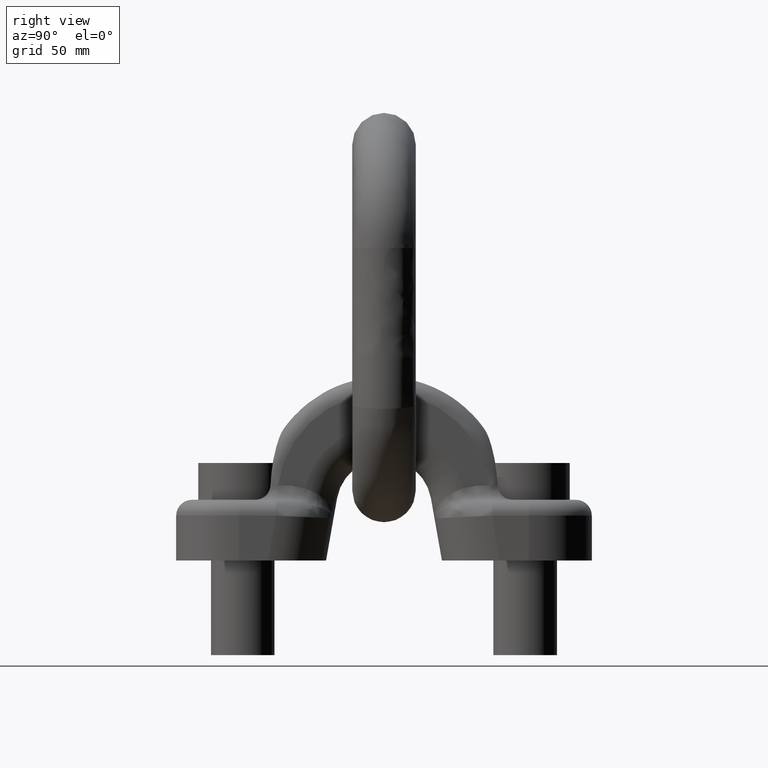
[diagram: clean part render]
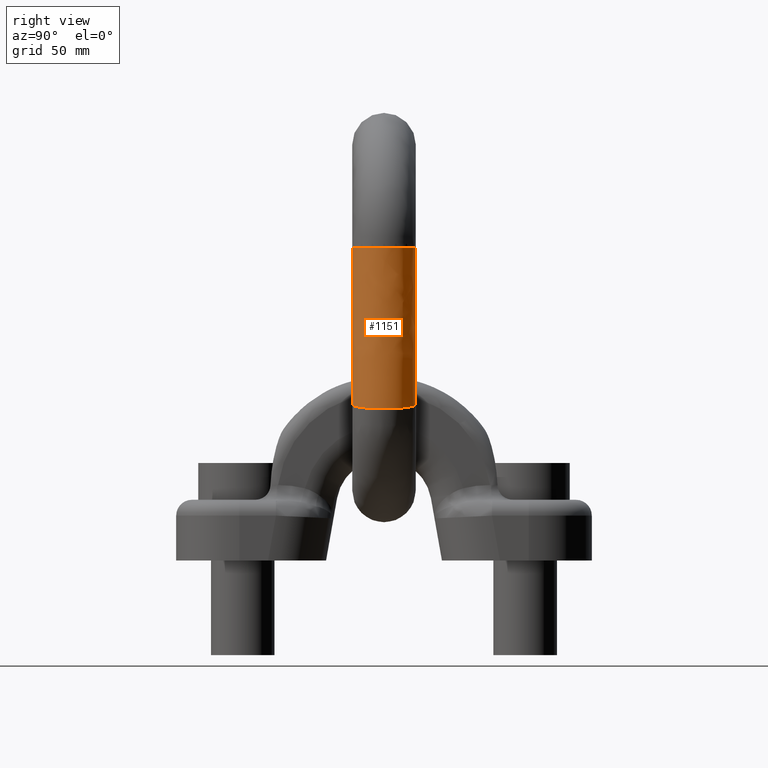
[diagram: same view with one face highlighted and labeled with its STEP entity id]
A machine part, right view. The second image highlights one B-rep face of the part: STEP entity #1151.
In plain terms, the highlighted face is a freeform B-spline surface patch.
Its self-contained STEP definition (entity closure, byte-faithful):
#31=(
BOUNDED_CURVE()
B_SPLINE_CURVE(4,(#7114,#7115,#7116,#7117,#7118,#7119,#7120,#7121,#7122,
#7123,#7124,#7125,#7126,#7127),.UNSPECIFIED.,.T.,.F.)
B_SPLINE_CURVE_WITH_KNOTS((2,3,3,3,3,3,2),(-0.25,0.,0.25,0.5,0.75,1.,1.25),
 .UNSPECIFIED.)
CURVE()
GEOMETRIC_REPRESENTATION_ITEM()
RATIONAL_B_SPLINE_CURVE((1.0166117137858,1.0166117137858,0.958470715535492,
1.0166117137858,1.0166117137858,0.958470715535492,1.0166117137858,1.0166117137858,
0.958470715535492,1.0166117137858,1.0166117137858,0.958470715535492,1.0166117137858,
1.0166117137858))
REPRESENTATION_ITEM('')
);
#32=(
BOUNDED_CURVE()
B_SPLINE_CURVE(4,(#7129,#7130,#7131,#7132,#7133,#7134,#7135,#7136,#7137,
#7138,#7139,#7140,#7141,#7142),.UNSPECIFIED.,.T.,.F.)
B_SPLINE_CURVE_WITH_KNOTS((2,3,3,3,3,3,2),(-0.25,0.,0.25,0.5,0.75,1.,1.25),
 .UNSPECIFIED.)
CURVE()
GEOMETRIC_REPRESENTATION_ITEM()
RATIONAL_B_SPLINE_CURVE((1.0166117137858,1.0166117137858,0.958470715535492,
1.0166117137858,1.0166117137858,0.958470715535492,1.0166117137858,1.0166117137858,
0.958470715535492,1.0166117137858,1.0166117137858,0.958470715535492,1.0166117137858,
1.0166117137858))
REPRESENTATION_ITEM('')
);
#827=(
BOUNDED_SURFACE()
B_SPLINE_SURFACE(4,3,((#7144,#7145,#7146,#7147,#7148,#7149,#7150,#7151,
#7152,#7153),(#7154,#7155,#7156,#7157,#7158,#7159,#7160,#7161,#7162,#7163),
(#7164,#7165,#7166,#7167,#7168,#7169,#7170,#7171,#7172,#7173),(#7174,#7175,
#7176,#7177,#7178,#7179,#7180,#7181,#7182,#7183),(#7184,#7185,#7186,#7187,
#7188,#7189,#7190,#7191,#7192,#7193),(#7194,#7195,#7196,#7197,#7198,#7199,
#7200,#7201,#7202,#7203),(#7204,#7205,#7206,#7207,#7208,#7209,#7210,#7211,
#7212,#7213),(#7214,#7215,#7216,#7217,#7218,#7219,#7220,#7221,#7222,#7223),
(#7224,#7225,#7226,#7227,#7228,#7229,#7230,#7231,#7232,#7233),(#7234,#7235,
#7236,#7237,#7238,#7239,#7240,#7241,#7242,#7243),(#7244,#7245,#7246,#7247,
#7248,#7249,#7250,#7251,#7252,#7253),(#7254,#7255,#7256,#7257,#7258,#7259,
#7260,#7261,#7262,#7263),(#7264,#7265,#7266,#7267,#7268,#7269,#7270,#7271,
#7272,#7273),(#7274,#7275,#7276,#7277,#7278,#7279,#7280,#7281,#7282,#7283)),
 .UNSPECIFIED.,.T.,.F.,.F.)
B_SPLINE_SURFACE_WITH_KNOTS((2,3,3,3,3,3,2),(4,1,1,1,1,1,1,4),(-0.25,0.,
0.25,0.5,0.75,1.,1.25),(0.,0.0432087135786119,0.0921088676254971,0.141290802977337,
0.189262808703866,0.373676181936575,0.994886599698742,1.),.UNSPECIFIED.)
GEOMETRIC_REPRESENTATION_ITEM()
RATIONAL_B_SPLINE_SURFACE(((1.0166117137858,1.0166117137858,1.0166117137858,
1.0166117137858,1.0166117137858,1.0166117137858,1.0166117137858,1.0166117137858,
1.0166117137858,1.0166117137858),(1.0166117137858,1.0166117137858,1.0166117137858,
1.0166117137858,1.0166117137858,1.0166117137858,1.0166117137858,1.0166117137858,
1.0166117137858,1.0166117137858),(0.958470715535492,0.958470715535492,0.958470715535491,
0.958470715535493,0.958470715535492,0.958470715535493,0.95847071553549,
0.958470715535493,0.958470715535492,0.958470715535492),(1.0166117137858,
1.0166117137858,1.0166117137858,1.0166117137858,1.0166117137858,1.0166117137858,
1.0166117137858,1.0166117137858,1.0166117137858,1.0166117137858),(1.0166117137858,
1.0166117137858,1.0166117137858,1.0166117137858,1.0166117137858,1.0166117137858,
1.0166117137858,1.0166117137858,1.0166117137858,1.0166117137858),(0.958470715535492,
0.958470715535492,0.958470715535491,0.958470715535493,0.958470715535492,
0.958470715535493,0.95847071553549,0.958470715535493,0.958470715535492,
0.958470715535492),(1.0166117137858,1.0166117137858,1.0166117137858,1.0166117137858,
1.0166117137858,1.0166117137858,1.0166117137858,1.0166117137858,1.0166117137858,
1.0166117137858),(1.0166117137858,1.0166117137858,1.0166117137858,1.0166117137858,
1.0166117137858,1.0166117137858,1.0166117137858,1.0166117137858,1.0166117137858,
1.0166117137858),(0.958470715535492,0.958470715535492,0.958470715535491,
0.958470715535493,0.958470715535492,0.958470715535493,0.95847071553549,
0.958470715535493,0.958470715535492,0.958470715535492),(1.0166117137858,
1.0166117137858,1.0166117137858,1.0166117137858,1.0166117137858,1.0166117137858,
1.0166117137858,1.0166117137858,1.0166117137858,1.0166117137858),(1.0166117137858,
1.0166117137858,1.0166117137858,1.0166117137858,1.0166117137858,1.0166117137858,
1.0166117137858,1.0166117137858,1.0166117137858,1.0166117137858),(0.958470715535492,
0.958470715535492,0.958470715535491,0.958470715535493,0.958470715535492,
0.958470715535493,0.95847071553549,0.958470715535493,0.958470715535492,
0.958470715535492),(1.0166117137858,1.0166117137858,1.0166117137858,1.0166117137858,
1.0166117137858,1.0166117137858,1.0166117137858,1.0166117137858,1.0166117137858,
1.0166117137858),(1.0166117137858,1.0166117137858,1.0166117137858,1.0166117137858,
1.0166117137858,1.0166117137858,1.0166117137858,1.0166117137858,1.0166117137858,
1.0166117137858)))
REPRESENTATION_ITEM('')
SURFACE()
);
#1151=ADVANCED_FACE('',(#1502,#1503),#827,.F.);
#1502=FACE_BOUND('',#1699,.T.);
#1503=FACE_BOUND('',#1700,.T.);
#1699=EDGE_LOOP('',(#2865));
#1700=EDGE_LOOP('',(#2866));
#2865=ORIENTED_EDGE('',*,*,#3570,.T.);
#2866=ORIENTED_EDGE('',*,*,#3571,.F.);
#3150=VERTEX_POINT('',#7128);
#3151=VERTEX_POINT('',#7143);
#3570=EDGE_CURVE('',#3150,#3150,#31,.T.);
#3571=EDGE_CURVE('',#3151,#3151,#32,.T.);
#7114=CARTESIAN_POINT('',(77.3007613865596,22.5,109.379454022416));
#7115=CARTESIAN_POINT('',(61.5243730694713,22.5,111.463071945445));
#7116=CARTESIAN_POINT('',(51.0454819839968,18.5225243558257,112.847039228724));
#7117=CARTESIAN_POINT('',(47.1013849047248,7.95495128834867,113.367943709481));
#7118=CARTESIAN_POINT('',(47.1013849047248,-7.95495128834865,113.367943709481));
#7119=CARTESIAN_POINT('',(51.0454819839968,-18.5225243558257,112.847039228724));
#7120=CARTESIAN_POINT('',(61.5243730694712,-22.5,111.463071945445));
#7121=CARTESIAN_POINT('',(77.3007613865595,-22.5,109.379454022416));
#7122=CARTESIAN_POINT('',(87.779652472034,-18.5225243558257,107.995486739137));
#7123=CARTESIAN_POINT('',(91.7237495513061,-7.95495128834867,107.474582258379));
#7124=CARTESIAN_POINT('',(91.7237495513061,7.95495128834865,107.474582258379));
#7125=CARTESIAN_POINT('',(87.779652472034,18.5225243558256,107.995486739137));
#7126=CARTESIAN_POINT('',(77.3007613865596,22.5,109.379454022416));
#7127=CARTESIAN_POINT('',(61.5243730694713,22.5,111.463071945445));
#7128=CARTESIAN_POINT('',(69.4125672280154,22.5,110.42126298393));
#7129=CARTESIAN_POINT('',(77.9548750239718,22.5,221.279225035843));
#7130=CARTESIAN_POINT('',(62.0449880121461,22.5,221.278385300655));
#7131=CARTESIAN_POINT('',(51.4774252830678,18.5225243558257,221.277827537155));
#7132=CARTESIAN_POINT('',(47.4999535301114,7.95495128834866,221.277617603358));
#7133=CARTESIAN_POINT('',(47.4999535301114,-7.95495128834867,221.277617603358));
#7134=CARTESIAN_POINT('',(51.4774252830679,-18.5225243558257,221.277827537155));
#7135=CARTESIAN_POINT('',(62.0449880121461,-22.5,221.278385300655));
#7136=CARTESIAN_POINT('',(77.9548750239718,-22.5,221.279225035843));
#7137=CARTESIAN_POINT('',(88.52243775305,-18.5225243558257,221.279782799343));
#7138=CARTESIAN_POINT('',(92.4999095060064,-7.95495128834866,221.27999273314));
#7139=CARTESIAN_POINT('',(92.4999095060064,7.95495128834866,221.27999273314));
#7140=CARTESIAN_POINT('',(88.52243775305,18.5225243558257,221.279782799343));
#7141=CARTESIAN_POINT('',(77.9548750239718,22.5,221.279225035843));
#7142=CARTESIAN_POINT('',(62.0449880121461,22.5,221.278385300655));
#7143=CARTESIAN_POINT('',(69.9999315180589,22.5,221.278805168249));
#7144=CARTESIAN_POINT('',(61.5243730694713,22.5,111.463071945445));
#7145=CARTESIAN_POINT('',(61.6841675240441,22.5,112.689595749437));
#7146=CARTESIAN_POINT('',(61.9490660167534,22.5,115.33886785264));
#7147=CARTESIAN_POINT('',(62.0719379187288,22.5,119.329266250323));
#7148=CARTESIAN_POINT('',(62.0403747593272,22.5,124.539408769396));
#7149=CARTESIAN_POINT('',(62.0468340514941,22.4999999999999,134.445102627707));
#7150=CARTESIAN_POINT('',(62.0433444384774,22.5000000000001,165.975830546508));
#7151=CARTESIAN_POINT('',(62.0456695433861,22.4999999999999,198.17382256403));
#7152=CARTESIAN_POINT('',(62.0449923462162,22.5,221.091411880696));
#7153=CARTESIAN_POINT('',(62.0449880121461,22.5,221.278385300655));
#7154=CARTESIAN_POINT('',(77.3007613865596,22.5,109.379454022416));
#7155=CARTESIAN_POINT('',(77.5015311366207,22.5,110.907548343909));
#7156=CARTESIAN_POINT('',(77.8343562294252,22.5,114.217875140239));
#7157=CARTESIAN_POINT('',(77.9887355607674,22.5,119.631356401599));
#7158=CARTESIAN_POINT('',(77.9490788177274,22.5,124.489054213263));
#7159=CARTESIAN_POINT('',(77.9571944339886,22.5,134.463268032859));
#7160=CARTESIAN_POINT('',(77.9528099968991,22.5,165.960124612621));
#7161=CARTESIAN_POINT('',(77.955731316871,22.4999999999999,198.177667293768));
#7162=CARTESIAN_POINT('',(77.9548804694059,22.5,221.092307189764));
#7163=CARTESIAN_POINT('',(77.9548750239718,22.5,221.279225035843));
#7164=CARTESIAN_POINT('',(87.779652472034,18.5225243558256,107.995486739137));
#7165=CARTESIAN_POINT('',(88.0076385690808,18.5225243558257,109.723888288366));
#7166=CARTESIAN_POINT('',(88.3855814309143,18.5225243558257,113.473296577341));
#7167=CARTESIAN_POINT('',(88.5608884241576,18.5225243558256,119.832008777135));
#7168=CARTESIAN_POINT('',(88.5158558130967,18.5225243558257,124.455608034152));
#7169=CARTESIAN_POINT('',(88.5250715822848,18.5225243558257,134.475333741326));
#7170=CARTESIAN_POINT('',(88.5200927909109,18.5225243558257,165.949692518324));
#7171=CARTESIAN_POINT('',(88.5234101250133,18.5225243558257,198.180221015403));
#7172=CARTESIAN_POINT('',(88.5224439366672,18.5225243558257,221.092901866189));
#7173=CARTESIAN_POINT('',(88.52243775305,18.5225243558257,221.279782799343));
#7174=CARTESIAN_POINT('',(91.7237495513061,7.95495128834865,107.474582258379));
#7175=CARTESIAN_POINT('',(91.9619794722249,7.95495128834865,109.278376436984));
#7176=CARTESIAN_POINT('',(92.3569039840823,7.95495128834864,113.19304839924));
#7177=CARTESIAN_POINT('',(92.5400878346671,7.95495128834864,119.907531314954));
#7178=CARTESIAN_POINT('',(92.4930318276967,7.95495128834867,124.443019395118));
#7179=CARTESIAN_POINT('',(92.5026616779085,7.95495128834866,134.479875092615));
#7180=CARTESIAN_POINT('',(92.4974591805161,7.95495128834866,165.945766034851));
#7181=CARTESIAN_POINT('',(92.5009255683843,7.95495128834867,198.181182197839));
#7182=CARTESIAN_POINT('',(92.4999159674646,7.95495128834866,221.093125693455));
#7183=CARTESIAN_POINT('',(92.4999095060064,7.95495128834866,221.27999273314));
#7184=CARTESIAN_POINT('',(91.7237495513061,-7.95495128834867,107.474582258379));
#7185=CARTESIAN_POINT('',(91.9619794722249,-7.95495128834868,109.278376436984));
#7186=CARTESIAN_POINT('',(92.3569039840823,-7.95495128834868,113.19304839924));
#7187=CARTESIAN_POINT('',(92.5400878346671,-7.95495128834867,119.907531314954));
#7188=CARTESIAN_POINT('',(92.4930318276968,-7.95495128834866,124.443019395118));
#7189=CARTESIAN_POINT('',(92.5026616779084,-7.95495128834865,134.479875092615));
#7190=CARTESIAN_POINT('',(92.4974591805163,-7.95495128834867,165.945766034851));
#7191=CARTESIAN_POINT('',(92.5009255683843,-7.95495128834865,198.181182197839));
#7192=CARTESIAN_POINT('',(92.4999159674646,-7.95495128834866,221.093125693455));
#7193=CARTESIAN_POINT('',(92.4999095060064,-7.95495128834866,221.27999273314));
#7194=CARTESIAN_POINT('',(87.779652472034,-18.5225243558257,107.995486739137));
#7195=CARTESIAN_POINT('',(88.0076385690807,-18.5225243558257,109.723888288366));
#7196=CARTESIAN_POINT('',(88.3855814309143,-18.5225243558257,113.473296577341));
#7197=CARTESIAN_POINT('',(88.5608884241576,-18.5225243558257,119.832008777135));
#7198=CARTESIAN_POINT('',(88.5158558130967,-18.5225243558257,124.455608034152));
#7199=CARTESIAN_POINT('',(88.5250715822848,-18.5225243558257,134.475333741326));
#7200=CARTESIAN_POINT('',(88.520092790911,-18.5225243558257,165.949692518324));
#7201=CARTESIAN_POINT('',(88.5234101250131,-18.5225243558257,198.180221015403));
#7202=CARTESIAN_POINT('',(88.5224439366672,-18.5225243558257,221.092901866189));
#7203=CARTESIAN_POINT('',(88.52243775305,-18.5225243558257,221.279782799343));
#7204=CARTESIAN_POINT('',(77.3007613865595,-22.5,109.379454022416));
#7205=CARTESIAN_POINT('',(77.5015311366206,-22.5,110.907548343909));
#7206=CARTESIAN_POINT('',(77.8343562294251,-22.5,114.217875140239));
#7207=CARTESIAN_POINT('',(77.9887355607674,-22.5,119.631356401599));
#7208=CARTESIAN_POINT('',(77.9490788177274,-22.5,124.489054213263));
#7209=CARTESIAN_POINT('',(77.9571944339886,-22.5,134.463268032859));
#7210=CARTESIAN_POINT('',(77.9528099968991,-22.5,165.960124612621));
#7211=CARTESIAN_POINT('',(77.955731316871,-22.4999999999999,198.177667293768));
#7212=CARTESIAN_POINT('',(77.9548804694059,-22.5,221.092307189764));
#7213=CARTESIAN_POINT('',(77.9548750239718,-22.5,221.279225035843));
#7214=CARTESIAN_POINT('',(61.5243730694713,-22.5,111.463071945445));
#7215=CARTESIAN_POINT('',(61.684167524044,-22.5,112.689595749437));
#7216=CARTESIAN_POINT('',(61.9490660167534,-22.5,115.33886785264));
#7217=CARTESIAN_POINT('',(62.0719379187288,-22.5,119.329266250323));
#7218=CARTESIAN_POINT('',(62.0403747593272,-22.5,124.539408769396));
#7219=CARTESIAN_POINT('',(62.0468340514942,-22.5,134.445102627707));
#7220=CARTESIAN_POINT('',(62.0433444384773,-22.5,165.975830546508));
#7221=CARTESIAN_POINT('',(62.0456695433862,-22.4999999999999,198.17382256403));
#7222=CARTESIAN_POINT('',(62.0449923462162,-22.5,221.091411880696));
#7223=CARTESIAN_POINT('',(62.0449880121461,-22.5,221.278385300655));
#7224=CARTESIAN_POINT('',(51.0454819839968,-18.5225243558257,112.847039228724));
#7225=CARTESIAN_POINT('',(51.1780600915839,-18.5225243558257,113.87325580498));
#7226=CARTESIAN_POINT('',(51.3978408152642,-18.5225243558257,116.083446415538));
#7227=CARTESIAN_POINT('',(51.4997850553387,-18.5225243558257,119.128613874787));
#7228=CARTESIAN_POINT('',(51.4735977639578,-18.5225243558257,124.572854948507));
#7229=CARTESIAN_POINT('',(51.4789569031981,-18.5225243558257,134.433036919239));
#7230=CARTESIAN_POINT('',(51.4760616444653,-18.5225243558257,165.986262640807));
#7231=CARTESIAN_POINT('',(51.4779907352442,-18.5225243558257,198.171268842393));
#7232=CARTESIAN_POINT('',(51.4774288789549,-18.5225243558257,221.090817204271));
#7233=CARTESIAN_POINT('',(51.4774252830679,-18.5225243558257,221.277827537155));
#7234=CARTESIAN_POINT('',(47.1013849047248,-7.95495128834865,113.367943709481));
#7235=CARTESIAN_POINT('',(47.2237191884398,-7.95495128834865,114.318767656362));
#7236=CARTESIAN_POINT('',(47.4265182620962,-7.95495128834864,116.363694593639));
#7237=CARTESIAN_POINT('',(47.5205856448291,-7.95495128834864,119.053091336968));
#7238=CARTESIAN_POINT('',(47.4964217493578,-7.95495128834868,124.58544358754));
#7239=CARTESIAN_POINT('',(47.5013668075746,-7.95495128834865,134.428495567952));
#7240=CARTESIAN_POINT('',(47.4986952548596,-7.9549512883487,165.990189124277));
#7241=CARTESIAN_POINT('',(47.5004752918731,-7.95495128834865,198.170307659959));
#7242=CARTESIAN_POINT('',(47.4999568481575,-7.95495128834867,221.090593377004));
#7243=CARTESIAN_POINT('',(47.4999535301114,-7.95495128834867,221.277617603358));
#7244=CARTESIAN_POINT('',(47.1013849047248,7.95495128834868,113.367943709481));
#7245=CARTESIAN_POINT('',(47.2237191884398,7.95495128834868,114.318767656362));
#7246=CARTESIAN_POINT('',(47.4265182620963,7.95495128834868,116.363694593639));
#7247=CARTESIAN_POINT('',(47.5205856448291,7.95495128834867,119.053091336968));
#7248=CARTESIAN_POINT('',(47.4964217493578,7.95495128834865,124.58544358754));
#7249=CARTESIAN_POINT('',(47.5013668075746,7.95495128834866,134.428495567952));
#7250=CARTESIAN_POINT('',(47.4986952548596,7.95495128834865,165.990189124277));
#7251=CARTESIAN_POINT('',(47.5004752918731,7.95495128834866,198.170307659959));
#7252=CARTESIAN_POINT('',(47.4999568481575,7.95495128834866,221.090593377004));
#7253=CARTESIAN_POINT('',(47.4999535301114,7.95495128834866,221.277617603358));
#7254=CARTESIAN_POINT('',(51.0454819839968,18.5225243558257,112.847039228724));
#7255=CARTESIAN_POINT('',(51.178060091584,18.5225243558257,113.87325580498));
#7256=CARTESIAN_POINT('',(51.3978408152642,18.5225243558257,116.083446415538));
#7257=CARTESIAN_POINT('',(51.4997850553388,18.5225243558257,119.128613874787));
#7258=CARTESIAN_POINT('',(51.4735977639578,18.5225243558257,124.572854948507));
#7259=CARTESIAN_POINT('',(51.4789569031982,18.5225243558257,134.433036919239));
#7260=CARTESIAN_POINT('',(51.4760616444652,18.5225243558256,165.986262640807));
#7261=CARTESIAN_POINT('',(51.4779907352443,18.5225243558257,198.171268842393));
#7262=CARTESIAN_POINT('',(51.4774288789549,18.5225243558257,221.090817204271));
#7263=CARTESIAN_POINT('',(51.4774252830678,18.5225243558257,221.277827537155));
#7264=CARTESIAN_POINT('',(61.5243730694713,22.5,111.463071945445));
#7265=CARTESIAN_POINT('',(61.6841675240441,22.5,112.689595749437));
#7266=CARTESIAN_POINT('',(61.9490660167534,22.5,115.33886785264));
#7267=CARTESIAN_POINT('',(62.0719379187288,22.5,119.329266250323));
#7268=CARTESIAN_POINT('',(62.0403747593272,22.5,124.539408769396));
#7269=CARTESIAN_POINT('',(62.0468340514941,22.4999999999999,134.445102627707));
#7270=CARTESIAN_POINT('',(62.0433444384774,22.5000000000001,165.975830546508));
#7271=CARTESIAN_POINT('',(62.0456695433861,22.4999999999999,198.17382256403));
#7272=CARTESIAN_POINT('',(62.0449923462162,22.5,221.091411880696));
#7273=CARTESIAN_POINT('',(62.0449880121461,22.5,221.278385300655));
#7274=CARTESIAN_POINT('',(77.3007613865596,22.5,109.379454022416));
#7275=CARTESIAN_POINT('',(77.5015311366207,22.5,110.907548343909));
#7276=CARTESIAN_POINT('',(77.8343562294252,22.5,114.217875140239));
#7277=CARTESIAN_POINT('',(77.9887355607674,22.5,119.631356401599));
#7278=CARTESIAN_POINT('',(77.9490788177274,22.5,124.489054213263));
#7279=CARTESIAN_POINT('',(77.9571944339886,22.5,134.463268032859));
#7280=CARTESIAN_POINT('',(77.9528099968991,22.5,165.960124612621));
#7281=CARTESIAN_POINT('',(77.955731316871,22.4999999999999,198.177667293768));
#7282=CARTESIAN_POINT('',(77.9548804694059,22.5,221.092307189764));
#7283=CARTESIAN_POINT('',(77.9548750239718,22.5,221.279225035843));